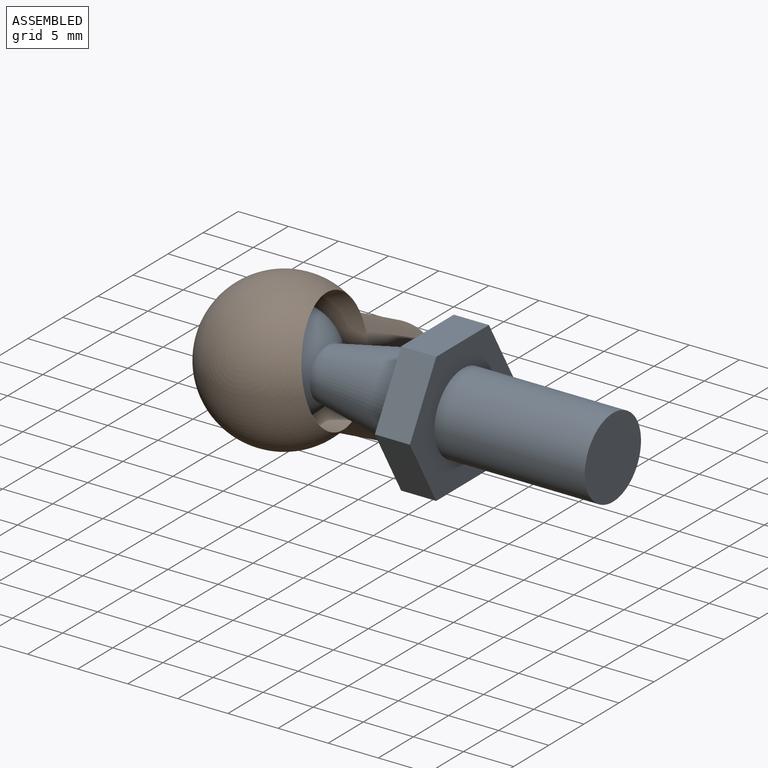
[diagram: assembled view]
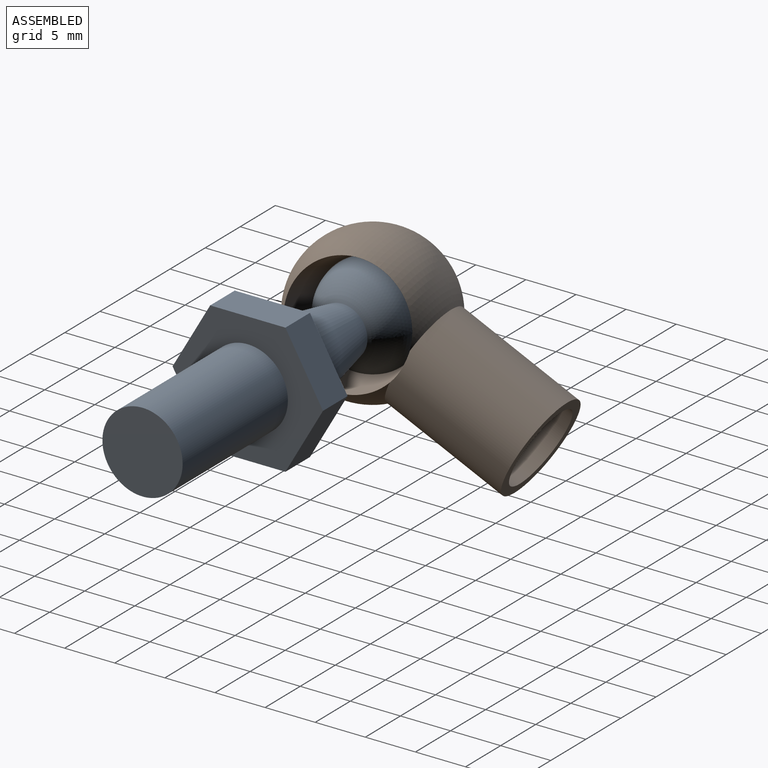
[diagram: assembled view, second angle]
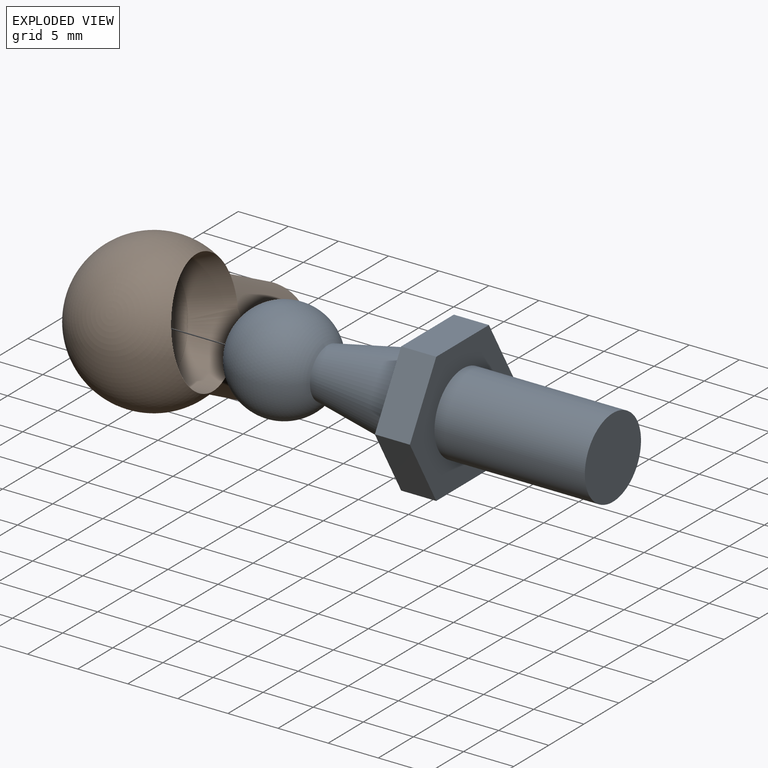
[diagram: exploded view]
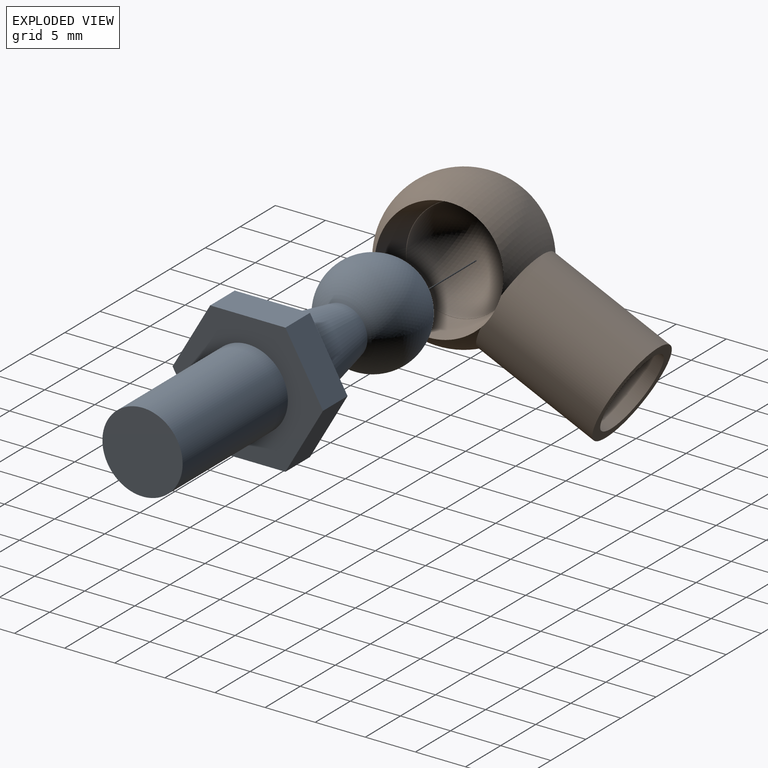
[diagram: exploded view, second angle]
FCSTD DOCUMENT  (FreeCAD 1.0R39109 (Git))
Label: giunto sferico
License: All rights reserved
LicenseURL: https://en.wikipedia.org/wiki/All_rights_reserved
objects: Sketcher::SketchObject×8, PartDesign::Pad×3, PartDesign::Revolution×3, PartDesign::Body×2, PartDesign::Plane×2, App::FeaturePython×2, PartDesign::SubtractiveLoft×1, Assembly::JointGroup×1, Assembly::AssemblyObject×1
note: 41 computed .brp shape members not serialized (recipe doc carries the construction recipe); baked Part::Feature solids carry a one-line shape summary decoded from their .brp

FEATURE [Sketcher::SketchObject] Sketch  label="Sketch vite"
  ArcFitTolerance = 1e-06
  AttachmentSupport = -> [XY_Plane]
  FullyConstrained = true
  MakeInternals = false
  MapMode = 5
  sketch-geometry (1):
    g0: Circle CenterX=0 CenterY=0 CenterZ=0 NormalX=0 NormalY=0 NormalZ=1 AngleXU=0 Radius=4
  constraints (2):
    c: Coincident(g0,g-1)
    c: Diameter(g0) = 8
FEATURE [PartDesign::Pad] Pad  label="Pad vite"
  Direction = (0,0,1)
  Length = 15
  Length2 = 10
  Profile = -> Sketch
  ReferenceAxis = -> Sketch [N_Axis]
  Refine = true
  Suppressed = false
  Type = 0
FEATURE [Sketcher::SketchObject] Sketch001  label="Sketch testa"
  ArcFitTolerance = 1e-06
  AttachmentSupport = -> [Pad]
  FullyConstrained = true
  MakeInternals = false
  MapMode = 5
  Placement = pos=(0,0,15) rot=(0,0,1;0rad)
  sketch-geometry (7):
    g0: LineSegment StartX=0 StartY=-7.50555 StartZ=0 EndX=6.5 EndY=-3.75278 EndZ=0
    g1: LineSegment StartX=6.5 StartY=-3.75278 StartZ=0 EndX=6.5 EndY=3.75278 EndZ=0
    g2: LineSegment StartX=6.5 StartY=3.75278 StartZ=0 EndX=-9e-16 EndY=7.50555 EndZ=0
    g3: LineSegment StartX=-9e-16 StartY=7.50555 StartZ=0 EndX=-6.5 EndY=3.75278 EndZ=0
    g4: LineSegment StartX=-6.5 StartY=3.75278 StartZ=0 EndX=-6.5 EndY=-3.75278 EndZ=0
    g5: LineSegment StartX=-6.5 StartY=-3.75278 StartZ=0 EndX=0 EndY=-7.50555 EndZ=0
    g6: Circle [constr] CenterX=0 CenterY=0 CenterZ=0 NormalX=0 NormalY=0 NormalZ=1 AngleXU=0 Radius=7.50555
  constraints (16):
    c: Coincident(g0,g1)
    c: Coincident(g1,g2)
    c: Coincident(g2,g3)
    c: Coincident(g3,g4)
    c: Coincident(g4,g5)
    c: Coincident(g5,g0)
    c: Equal(g0, g1-g5) x5
    c: PointOnObject(g0,g6)
    c: PointOnObject(g1,g6)
    c: PointOnObject(g2,g6)
    c: PointOnObject(g3,g6)
    c: PointOnObject(g4,g6)
    c: PointOnObject(g5,g6)
    c: Coincident(g6,g-1)
    c: Distance(g3,g1) = 13
    c: Vertical(g1)
FEATURE [PartDesign::Pad] Pad001  label="Pad testa"
  BaseFeature = -> Pad
  Direction = (0,0,1)
  Length = 3.5
  Length2 = 10
  Profile = -> Sketch001
  ReferenceAxis = -> Sketch001 [N_Axis]
  Refine = true
  Suppressed = false
  Type = 0
FEATURE [Sketcher::SketchObject] Sketch002  label="Sketch supporto sfera"
  ArcFitTolerance = 1e-06
  AttachmentSupport = -> [XZ_Plane]
  ExternalGeometry = -> [Pad001]
  FullyConstrained = true
  MakeInternals = false
  MapMode = 5
  Placement = pos=(0,0,0) rot=(1,0,0;1.5708rad)
  sketch-geometry (4):
    g0: LineSegment StartX=0 StartY=18.5 StartZ=0 EndX=4.5 EndY=18.5 EndZ=0
    g1: LineSegment StartX=4.5 StartY=18.5 StartZ=0 EndX=2.5 EndY=28.5 EndZ=0
    g2: LineSegment StartX=2.5 StartY=28.5 StartZ=0 EndX=0 EndY=28.5 EndZ=0
    g3: LineSegment StartX=0 StartY=28.5 StartZ=0 EndX=0 EndY=18.5 EndZ=0
  constraints (11):
    c: Coincident(g-4,g0)
    c: PointOnObject(g0,g-4)
    c: Coincident(g0,g1)
    c: Coincident(g1,g2)
    c: PointOnObject(g2,g-2)
    c: Horizontal(g2)
    c: Coincident(g2,g3)
    c: Coincident(g3,g0)
    c: DistanceY(g3,g3) = 10
    c: Distance(g0,g0) = 4.5
    c: Distance(g2,g2) = 2.5
FEATURE [PartDesign::Revolution] Revolution  label="Revolution supporto sfera"
  Angle = 360
  Angle2 = 60
  Axis = (0,2e-16,1)
  Base = (0,0,0)
  BaseFeature = -> Pad001
  Profile = -> Sketch002
  ReferenceAxis = -> Sketch002 [V_Axis]
  Refine = true
  Reversed = true
  Suppressed = false
  Type = 0
FEATURE [Sketcher::SketchObject] Sketch003  label="Sketch sfera"
  ArcFitTolerance = 1e-06
  AttachmentSupport = -> [YZ_Plane]
  ExternalGeometry = -> [Revolution]
  FullyConstrained = true
  MakeInternals = false
  MapMode = 5
  Placement = pos=(0,0,0) rot=(0.57735,0.57735,0.57735;2.0944rad)
  sketch-geometry (2):
    g0: ArcOfCircle CenterX=0 CenterY=32.8 CenterZ=0 NormalX=0 NormalY=0 NormalZ=1 AngleXU=0 Radius=5 StartAngle=1.5708 EndAngle=4.71239
    g1: LineSegment StartX=-9e-16 StartY=37.8 StartZ=0 EndX=-9e-16 EndY=27.8 EndZ=0
  constraints (7):
    c: PointOnObject(g0,g-4)
    c: PointOnObject(g0,g-2)
    c: DistanceY(g0,g0) = 5
    c: Coincident(g1,g0)
    c: Coincident(g1,g0)
    c: Vertical(g1)
    c: Distance(g-4,g0) = 0.7
FEATURE [PartDesign::Revolution] Revolution001  label="Sfera"
  Angle = 360
  Angle2 = 60
  Axis = (0,0,1)
  Base = (0,0,0)
  BaseFeature = -> Revolution
  Profile = -> Sketch003
  ReferenceAxis = -> Sketch003 [V_Axis]
  Refine = true
  Suppressed = false
  Type = 0
FEATURE [PartDesign::Body] Body  label="Sfera giunto"
  AllowCompound = false
  Group = -> [Sketch,Pad,Sketch001,Pad001,Sketch002,Revolution,Sketch003,Revolution001]
  Origin = -> Origin
  Placement = pos=(58.9,1.19209e-06,19.9) rot=(0.707107,0,-0.707107;3.14159rad)
  Tip = -> Revolution001
FEATURE [Sketcher::SketchObject] Sketch004  label="Sketch cilindro"
  ArcFitTolerance = 1e-06
  AttachmentSupport = -> [XY_Plane001]
  FullyConstrained = true
  MakeInternals = false
  MapMode = 5
  sketch-geometry (2):
    g0: Circle CenterX=0 CenterY=0 CenterZ=0 NormalX=0 NormalY=0 NormalZ=1 AngleXU=0 Radius=4
    g1: Circle CenterX=0 CenterY=0 CenterZ=0 NormalX=0 NormalY=0 NormalZ=1 AngleXU=0 Radius=5
  constraints (4):
    c: Diameter(g0) = 8
    c: Coincident(g0,g-1)
    c: Coincident(g1,g0)
    c: Diameter(g1) = 10
FEATURE [PartDesign::Pad] Pad002  label="Pad cilindro"
  Direction = (0,0,1)
  Length = 12.5
  Length2 = 10
  Profile = -> Sketch004
  ReferenceAxis = -> Sketch004 [N_Axis]
  Refine = true
  Suppressed = false
  Type = 0
FEATURE [Sketcher::SketchObject] Sketch005  label="Sketch sfera cava"
  ArcFitTolerance = 1e-06
  AttachmentSupport = -> [YZ_Plane001]
  ExternalGeometry = -> [Pad002]
  FullyConstrained = true
  MakeInternals = false
  MapMode = 5
  Placement = pos=(0,0,0) rot=(0.57735,0.57735,0.57735;2.0944rad)
  sketch-geometry (6):
    g0: ArcOfCircle CenterX=0 CenterY=18.0902 CenterZ=0 NormalX=0 NormalY=0 NormalZ=1 AngleXU=0 Radius=7.5 StartAngle=4.71239 EndAngle=7.85398
    g1: ArcOfCircle CenterX=0 CenterY=18.0902 CenterZ=0 NormalX=0 NormalY=0 NormalZ=1 AngleXU=0 Radius=5 StartAngle=4.71239 EndAngle=7.85398
    g2: LineSegment StartX=2.3e-15 StartY=25.5902 StartZ=0 EndX=1.5e-15 EndY=23.0902 EndZ=0
    g3: LineSegment StartX=-9e-16 StartY=13.0902 StartZ=0 EndX=-1.4e-15 EndY=10.5902 EndZ=0
    g4: LineSegment [constr] StartX=0 StartY=18.0902 StartZ=0 EndX=7.5 EndY=18.0902 EndZ=0
    g5: GeomPoint X=7.5 Y=18.0902 Z=0
  constraints (17):
    c: PointOnObject(g0,g-4)
    c: PointOnObject(g0,g-2)
    c: PointOnObject(g0,g-2)
    c: DistanceY(g0,g0) = 7.5
    c: PointOnObject(g-3,g0)
    c: PointOnObject(g1,g-2)
    c: PointOnObject(g1,g-2)
    c: Coincident(g1,g0)
    c: DistanceY(g0,g1) = 5
    c: Coincident(g2,g0)
    c: Coincident(g2,g1)
    c: Coincident(g3,g1)
    c: Coincident(g3,g0)
    c: Coincident(g4,g0)
    c: PointOnObject(g4,g0)
    c: Horizontal(g4)
    c: Coincident(g5,g4)
FEATURE [PartDesign::Revolution] Revolution002  label="Sfera cava"
  Angle = 360
  Angle2 = 60
  Axis = (0,0,1)
  Base = (0,0,0)
  BaseFeature = -> Pad002
  Profile = -> Sketch005
  ReferenceAxis = -> Sketch005 [V_Axis]
  Refine = true
  Reversed = true
  Suppressed = false
  Type = 0
FEATURE [PartDesign::Plane] DatumPlane  label="DatumPlane interno"
  AttachmentOffset = pos=(0,0,0.5) rot=(0,0,1;0rad)
  AttachmentSupport = -> [Sketch005]
  Length = 60.0588
  MapMode = 2
  Placement = pos=(0.5,0,0) rot=(0.57735,0.57735,0.57735;2.0944rad)
  ResizeMode = 0
  Width = 60.649
FEATURE [Sketcher::SketchObject] Sketch006  label="Sketch foro interno"
  ArcFitTolerance = 1e-06
  AttachmentSupport = -> [DatumPlane]
  ExternalGeometry = -> [Revolution002]
  FullyConstrained = true
  MakeInternals = false
  MapMode = 5
  Placement = pos=(0.5,0,0) rot=(0.57735,0.57735,0.57735;2.0944rad)
  sketch-geometry (3):
    g0: LineSegment [constr] StartX=0 StartY=23.1 StartZ=0 EndX=0 EndY=12.5 EndZ=0
    g1: GeomPoint [constr] X=0 Y=18.1 Z=0
    g2: Circle CenterX=0 CenterY=18.1 CenterZ=0 NormalX=0 NormalY=0 NormalZ=1 AngleXU=0 Radius=5
  constraints (8):
    c: PointOnObject(g0,g-2)
    c: PointOnObject(g0,g-2)
    c: PointOnObject(g0,g-3)
    c: PointOnObject(g1,g0)
    c: DistanceY(g1,g0) = 5
    c: DistanceY(g0,g1) = 5.6
    c: Coincident(g2,g1)
    c: Diameter(g2) = 10
FEATURE [PartDesign::Plane] DatumPlane001  label="DatumPlane esterno"
  AttachmentOffset = pos=(0,0,8) rot=(0,0,1;0rad)
  AttachmentSupport = -> [Revolution002]
  Length = 60.0588
  MapMode = 4
  Placement = pos=(8,0,0) rot=(0.57735,0.57735,0.57735;2.0944rad)
  ResizeMode = 0
  Width = 60.649
FEATURE [Sketcher::SketchObject] Sketch007  label="Sketch esterno"
  ArcFitTolerance = 1e-06
  AttachmentSupport = -> [DatumPlane001]
  FullyConstrained = false
  MakeInternals = false
  MapMode = 5
  Placement = pos=(8,0,0) rot=(0.57735,0.57735,0.57735;2.0944rad)
  sketch-geometry (5):
    g0: LineSegment [constr] StartX=6.5 StartY=18.081 StartZ=0 EndX=0 EndY=18.081 EndZ=0
    g1: LineSegment [constr] StartX=0 StartY=12.581 StartZ=0 EndX=0 EndY=18.081 EndZ=0
    g2: LineSegment [constr] StartX=0 StartY=12.581 StartZ=0 EndX=6.5 EndY=12.581 EndZ=0
    g3: LineSegment [constr] StartX=6.5 StartY=18.081 StartZ=0 EndX=6.5 EndY=12.581 EndZ=0
    g4: Circle CenterX=0 CenterY=18.081 CenterZ=0 NormalX=0 NormalY=0 NormalZ=1 AngleXU=0 Radius=6.5
  constraints (13):
    c: PointOnObject(g0,g-2)
    c: Horizontal(g0)
    c: PointOnObject(g1,g-2)
    c: Coincident(g1,g0)
    c: Coincident(g2,g1)
    c: Horizontal(g2)
    c: Coincident(g3,g0)
    c: Coincident(g3,g2)
    c: Vertical(g3)
    c: DistanceY(g1,g1) = 5.5
    c: Coincident(g4,g0)
    c: Tangent(g4,g3)
    c: Diameter(g4) = 13
FEATURE [PartDesign::SubtractiveLoft] SubtractiveLoft  label="Connettore completo"
  BaseFeature = -> Revolution002
  Closed = false
  Profile = -> Sketch006
  Refine = true
  Ruled = false
  Sections = -> [Sketch007]
  Suppressed = false
FEATURE [PartDesign::Body] Body001  label="Connettore"
  AllowCompound = false
  Group = -> [Sketch004,Pad002,Sketch005,Revolution002,DatumPlane,Sketch006,DatumPlane001,Sketch007,SubtractiveLoft]
  Origin = -> Origin001
  Placement = pos=(25.1363,16.0961,11.7) rot=(0.974501,-0.072197,0.212453;1.12913rad)
  Tip = -> SubtractiveLoft
FEATURE [App::FeaturePython] GroundedJoint  # Assembly grounded joint (typed FeaturePython)
  ObjectToGround = -> Body
  Placement = pos=(58.9,1.19209e-06,19.9) rot=(0.707107,0,-0.707107;3.14159rad)
FEATURE [App::FeaturePython] Joint  label="Ball"  # Assembly joint (typed FeaturePython)
  Activated = true
  AngleMax = 0
  AngleMin = 0
  Detach1 = false
  Detach2 = false
  Distance = 0
  Distance2 = 0
  EnableAngleMax = true
  EnableAngleMin = true
  EnableLengthMax = false
  EnableLengthMin = false
  JointType = 4 (Ball)
  LengthMax = 0
  LengthMin = 0
  Placement1 = pos=(1.42e-14,6.6e-15,32.8) rot=(0,0,-1;1.5708rad)
  Placement2 = pos=(0,3.6e-15,18.0902) rot=(0.707107,0.707107,0;3.14159rad)
  Reference1 = -> Assembly [Body.Face1,Body.Face1]
  Reference2 = -> Assembly [Body001.Face8,Body001.Face8]
FEATURE [Assembly::JointGroup] Joints
  Group = -> [GroundedJoint,Joint]
FEATURE [Assembly::AssemblyObject] Assembly  label="Assembly snodo"
  Group = -> [Joints,Body,Body001,GroundedJoint,Joint]
  Origin = -> Origin002
  Type = Assembly
